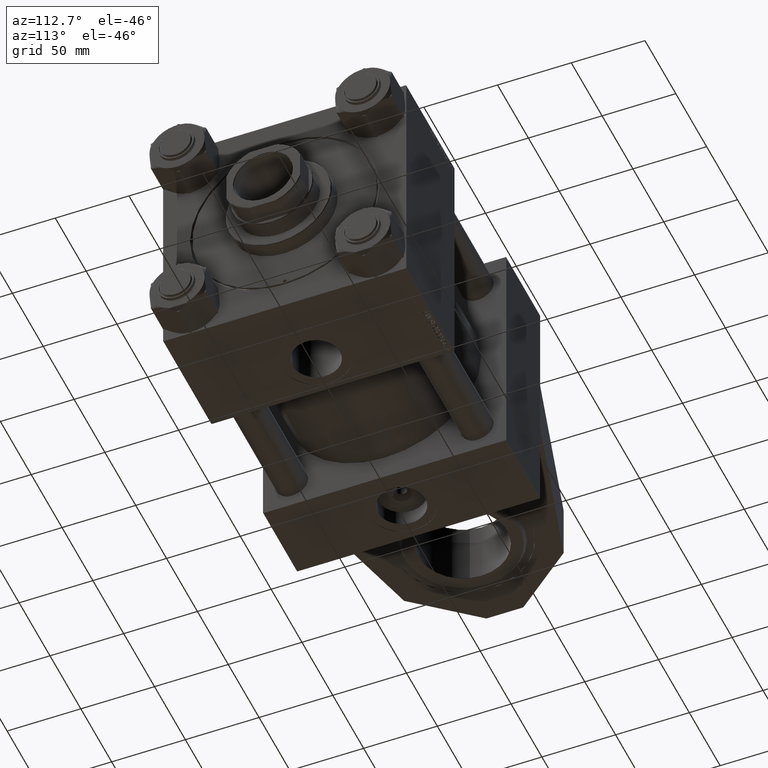
[diagram: clean part render]
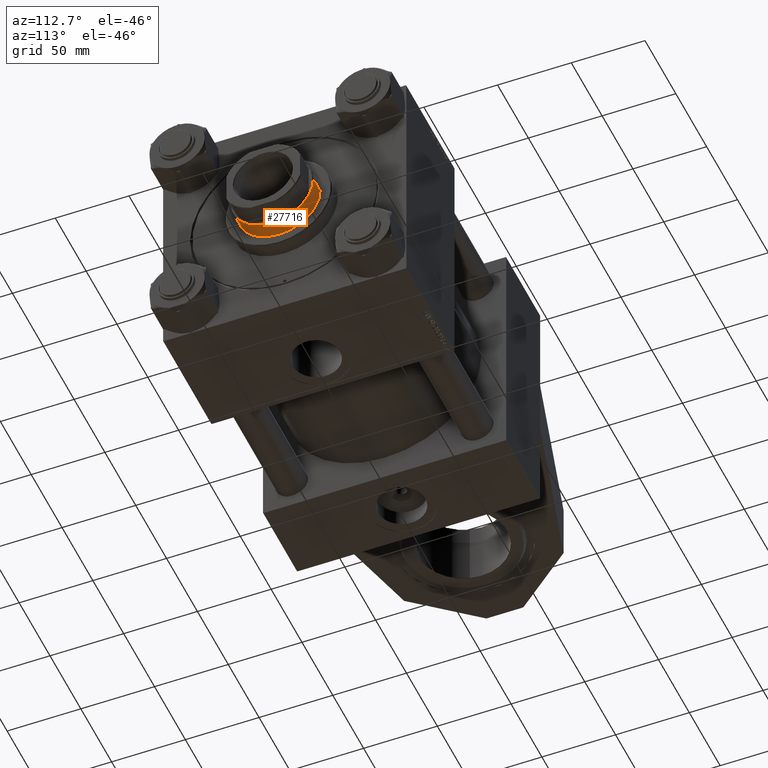
[diagram: same view with one face highlighted and labeled with its STEP entity id]
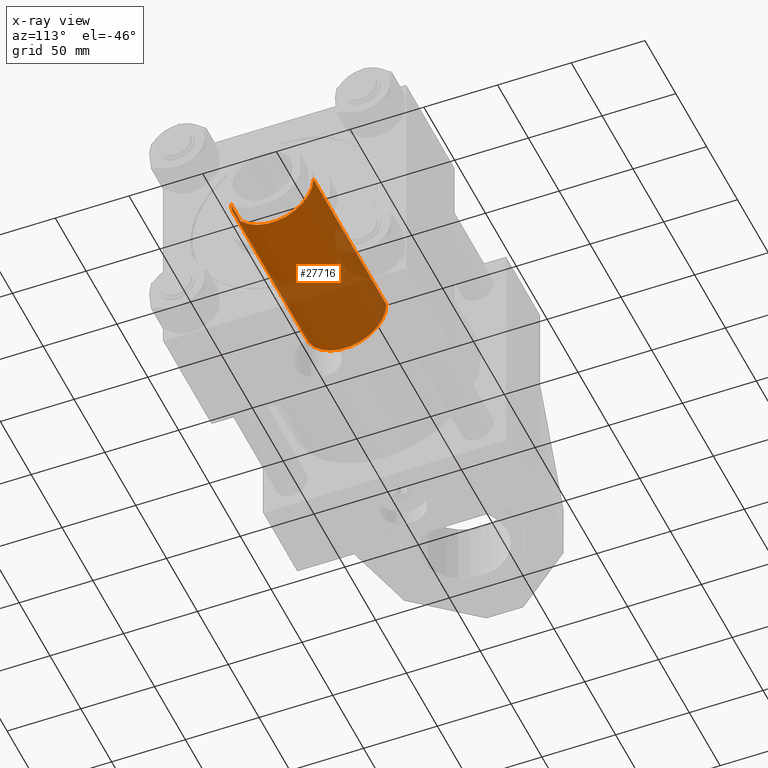
[diagram: x-ray of the same camera — body ghosted, the highlighted face saturated]
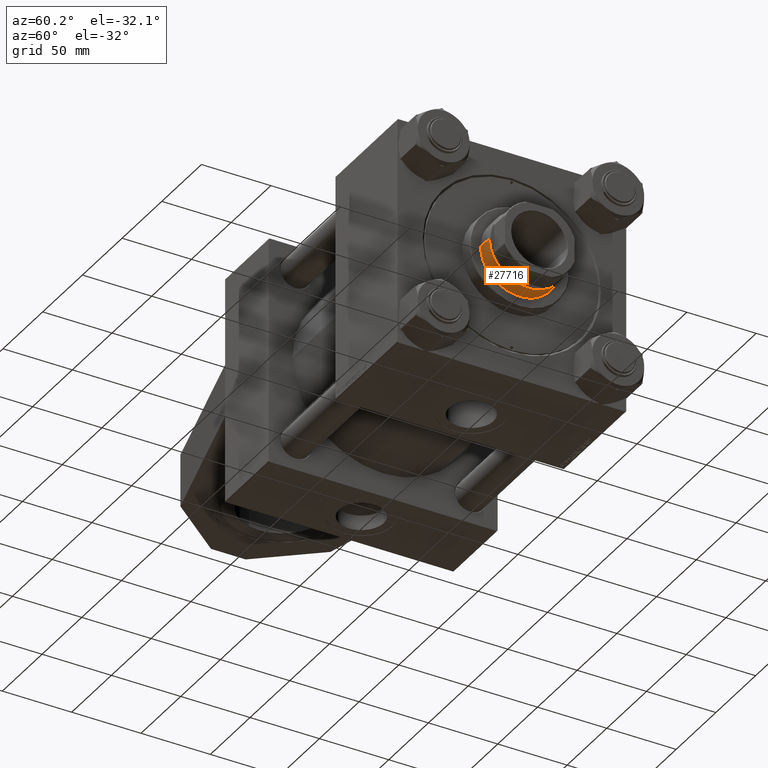
[diagram: same view with one face highlighted and labeled with its STEP entity id]
A machine part, auxiliary view. The second image highlights one B-rep face of the part: STEP entity #27716.
The next image is the same camera in x-ray: the body ghosted, the highlighted face saturated — about 54% of this face is hidden behind the body in this view.
A second angle (auxiliary view) of the same face is appended — the face is thin or edge-on in the first view.
In plain terms, the highlighted cylindrical surface (partial cylindrical patch) has radius 28 mm, axis along (-1, 0, 0).
Its self-contained STEP definition (entity closure, byte-faithful):
#1307 = AXIS2_PLACEMENT_3D ( 'NONE', #31330, #19534, #47512 ) ;
#3845 = DIRECTION ( 'NONE',  ( -0.000000000000000000, -0.000000000000000000, -1.000000000000000000 ) ) ;
#5287 = DIRECTION ( 'NONE',  ( 0.000000000000000000, 0.000000000000000000, 1.000000000000000000 ) ) ;
#7484 = EDGE_CURVE ( 'NONE', #38890, #29763, #7705, .T. ) ;
#7601 = EDGE_LOOP ( 'NONE', ( #14304, #14406, #19763, #41667 ) ) ;
#7705 = LINE ( 'NONE', #39020, #21790 ) ;
#8243 = CYLINDRICAL_SURFACE ( 'NONE', #1307, 28.00000000000000000 ) ;
#9701 = CARTESIAN_POINT ( 'NONE',  ( -28.00000000000000000, 0.000000000000000000, 182.4999999999999716 ) ) ;
#14304 = ORIENTED_EDGE ( 'NONE', *, *, #45153, .T. ) ;
#14406 = ORIENTED_EDGE ( 'NONE', *, *, #7484, .T. ) ;
#14786 = VERTEX_POINT ( 'NONE', #26634 ) ;
#15417 = DIRECTION ( 'NONE',  ( 0.000000000000000000, 0.000000000000000000, -1.000000000000000000 ) ) ;
#15428 = FACE_OUTER_BOUND ( 'NONE', #7601, .T. ) ;
#15714 = AXIS2_PLACEMENT_3D ( 'NONE', #30800, #15417, #50323 ) ;
#19534 = DIRECTION ( 'NONE',  ( -0.000000000000000000, -0.000000000000000000, -1.000000000000000000 ) ) ;
#19763 = ORIENTED_EDGE ( 'NONE', *, *, #36208, .T. ) ;
#21790 = VECTOR ( 'NONE', #3845, 1000.000000000000000 ) ;
#24472 = CARTESIAN_POINT ( 'NONE',  ( 28.00000000000000000, 3.429011037612589276E-15, 64.00000000000000000 ) ) ;
#26634 = CARTESIAN_POINT ( 'NONE',  ( -28.00000000000000000, 0.000000000000000000, 64.00000000000000000 ) ) ;
#27716 = ADVANCED_FACE ( 'NONE', ( #15428 ), #8243, .T. ) ;
#29763 = VERTEX_POINT ( 'NONE', #24472 ) ;
#30381 = VECTOR ( 'NONE', #35273, 1000.000000000000000 ) ;
#30800 = CARTESIAN_POINT ( 'NONE',  ( 0.000000000000000000, 0.000000000000000000, 182.4999999999999716 ) ) ;
#30880 = CARTESIAN_POINT ( 'NONE',  ( 28.00000000000000000, 3.429011037612589276E-15, 182.4999999999999716 ) ) ;
#31330 = CARTESIAN_POINT ( 'NONE',  ( 0.000000000000000000, 0.000000000000000000, 183.0000000000000000 ) ) ;
#31408 = CARTESIAN_POINT ( 'NONE',  ( -28.00000000000000000, 0.000000000000000000, 183.0000000000000000 ) ) ;
#31784 = CIRCLE ( 'NONE', #38342, 28.00000000000000000 ) ;
#35273 = DIRECTION ( 'NONE',  ( -0.000000000000000000, -0.000000000000000000, -1.000000000000000000 ) ) ;
#36208 = EDGE_CURVE ( 'NONE', #29763, #14786, #31784, .T. ) ;
#37352 = DIRECTION ( 'NONE',  ( 1.000000000000000000, 0.000000000000000000, 0.000000000000000000 ) ) ;
#38342 = AXIS2_PLACEMENT_3D ( 'NONE', #45074, #5287, #37352 ) ;
#38890 = VERTEX_POINT ( 'NONE', #30880 ) ;
#39020 = CARTESIAN_POINT ( 'NONE',  ( 28.00000000000000000, 3.429011037612589276E-15, 183.0000000000000000 ) ) ;
#41667 = ORIENTED_EDGE ( 'NONE', *, *, #43048, .F. ) ;
#42744 = CIRCLE ( 'NONE', #15714, 28.00000000000000000 ) ;
#43048 = EDGE_CURVE ( 'NONE', #47097, #14786, #47836, .T. ) ;
#45074 = CARTESIAN_POINT ( 'NONE',  ( 0.000000000000000000, 0.000000000000000000, 64.00000000000000000 ) ) ;
#45153 = EDGE_CURVE ( 'NONE', #47097, #38890, #42744, .T. ) ;
#47097 = VERTEX_POINT ( 'NONE', #9701 ) ;
#47512 = DIRECTION ( 'NONE',  ( -1.000000000000000000, 0.000000000000000000, 0.000000000000000000 ) ) ;
#47836 = LINE ( 'NONE', #31408, #30381 ) ;
#50323 = DIRECTION ( 'NONE',  ( 1.000000000000000000, 0.000000000000000000, 0.000000000000000000 ) ) ;